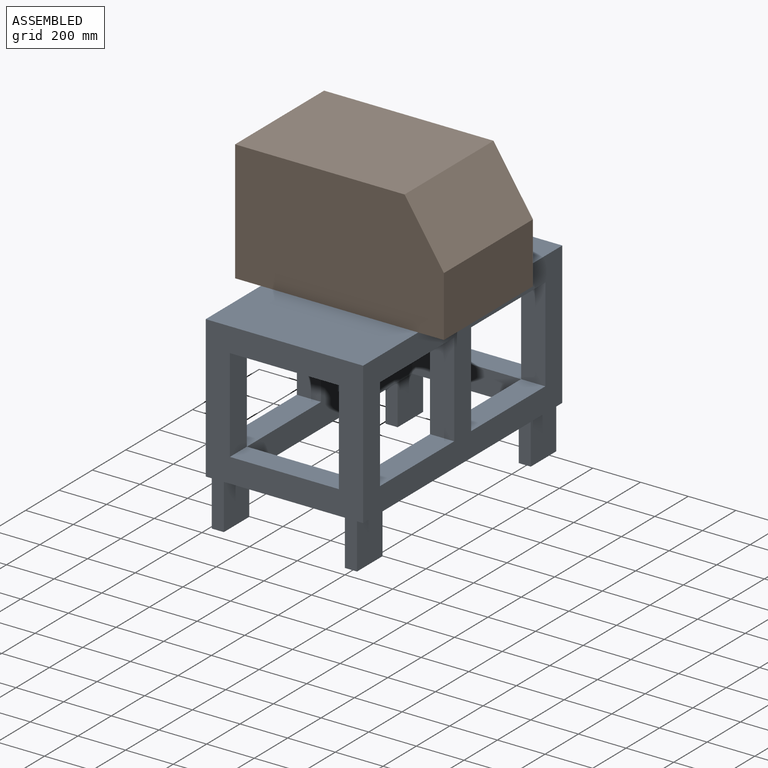
[diagram: assembled view]
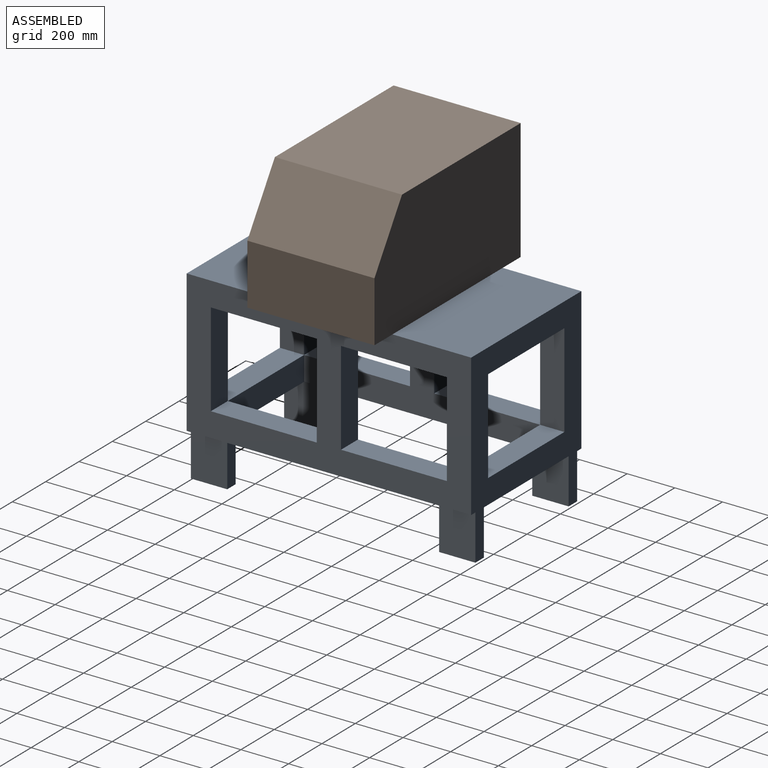
[diagram: assembled view, second angle]
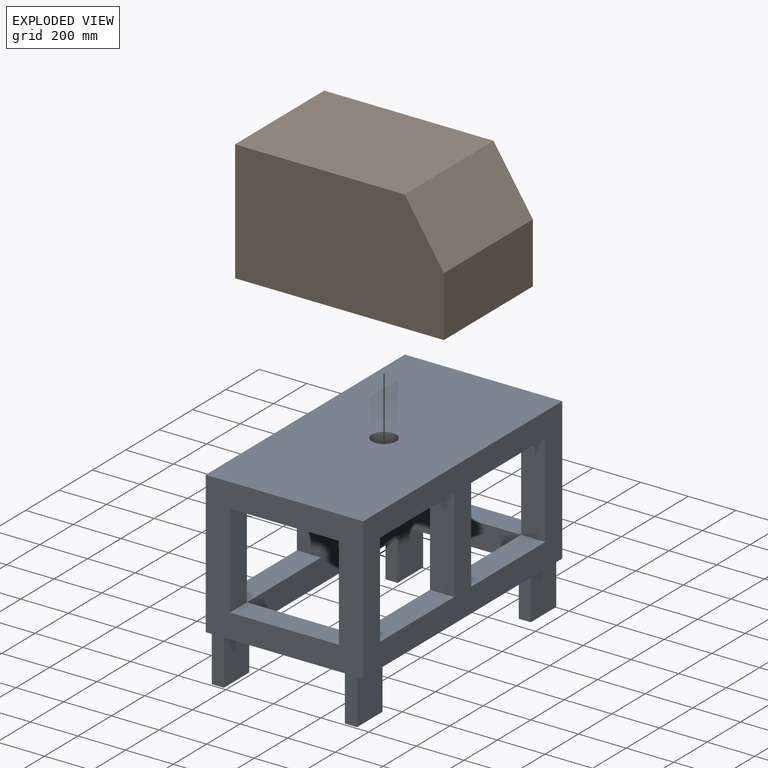
[diagram: exploded view]
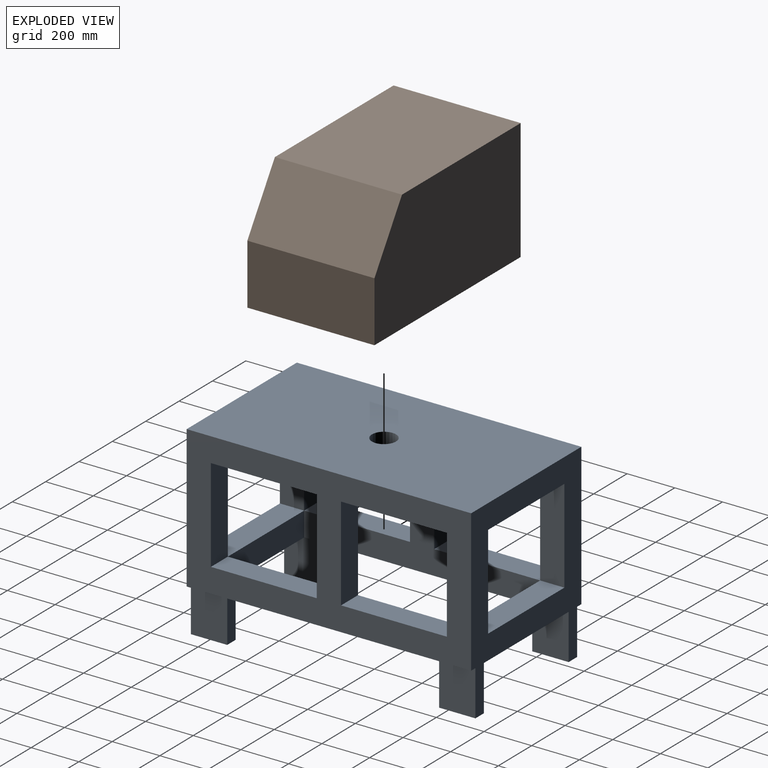
[diagram: exploded view, second angle]
ASSEMBLY  parts=2 mates=2
PART A: 46 faces, bbox 660.4x1193.8x787.4 mm
  f0: plane 152.4x50.8mm, normal (0,0,-1), area 7741.9mm2, adj f2,f6,f38,f44
  f1: plane 152.4x50.8mm, normal (0,0,-1), area 7741.9mm2, adj f3,f20,f39,f45
  f2: plane 190.5x50.8mm, normal (0,-1,0), area 9677.4mm2, adj f0,f22,f38,f44
  f3: plane 190.5x50.8mm, normal (0,1,0), area 9677.4mm2, adj f1,f22,f39,f45
  f4: plane 1193.8x596.9mm, normal (-1,0,0), area 362579.9mm2, adj f6,f14,f16,f20,f21,f22,f26,f31
  f5: plane 152.4x50.8mm, normal (0,0,-1), area 7741.9mm2, adj f6,f9,f40,f43
  f6: plane 787.4x660.4mm, normal (0,1,0), area 233547.9mm2, adj f0,f4,f5,f7,f18,f19,f21,f22
  f7: plane 1193.8x596.9mm, normal (1,0,0), area 362579.9mm2, adj f6,f15,f17,f20,f21,f22,f26,f27
  f8: plane 152.4x50.8mm, normal (0,0,-1), area 7741.9mm2, adj f10,f20,f41,f42
  f9: plane 190.5x50.8mm, normal (0,-1,0), area 9677.4mm2, adj f5,f22,f40,f43
  f10: plane 190.5x50.8mm, normal (0,1,0), area 9677.4mm2, adj f8,f22,f41,f42
  f11: plane 990.6x495.3mm, normal (-1,0,0), area 140644.9mm2, adj f15,f17,f22,f26,f27,f30,f36,f37
  f12: plane 990.6x495.3mm, normal (1,0,0), area 140644.9mm2, adj f14,f16,f22,f26,f31,f34,f36,f37
  f13: plane 457.2x101.6mm, normal (0,0,1), area 46451.5mm2, adj f20,f23,f25,f36
  f14: plane 444.5x101.6mm, normal (0,0,1), area 45161.2mm2, adj f4,f12,f33,f34
  f15: plane 444.5x101.6mm, normal (0,0,1), area 45161.2mm2, adj f7,f11,f29,f30
  f16: plane 444.5x101.6mm, normal (0,0,1), area 45161.2mm2, adj f4,f12,f31,f32
  f17: plane 444.5x101.6mm, normal (0,0,1), area 45161.2mm2, adj f7,f11,f27,f28
  f18: plane 393.7x101.6mm, normal (1,0,0), area 39999.9mm2, adj f6,f24,f26,f32
  f19: plane 393.7x101.6mm, normal (-1,0,0), area 39999.9mm2, adj f6,f24,f26,f28
  f20: plane 787.4x660.4mm, normal (0,-1,0), area 233547.9mm2, adj f1,f4,f7,f8,f13,f21,f22,f23
  f21: plane 1193.8x660.4mm, normal (0,0,1), area 780278.2mm2, adj f4,f6,f7,f20,f35
  f22: plane 1193.8x660.4mm, normal (0,0,-1), area 304515.5mm2, adj f2,f3,f4,f6,f7,f9,f10,f11
  f23: plane 393.7x101.6mm, normal (1,0,0), area 39999.9mm2, adj f13,f20,f26,f33
  f24: plane 457.2x101.6mm, normal (0,0,1), area 46451.5mm2, adj f6,f18,f19,f37
  f25: plane 393.7x101.6mm, normal (-1,0,0), area 39999.9mm2, adj f13,f20,f26,f29
  f26: plane 1193.8x660.4mm, normal (0,0,-1), area 718342.8mm2, adj f4,f6,f7,f11,f12,f18,f19,f20
  f27: plane 393.7x101.6mm, normal (0,1,0), area 39999.9mm2, adj f7,f11,f17,f26
  f28: plane 393.7x101.6mm, normal (0,-1,0), area 39999.9mm2, adj f7,f17,f19,f26
  f29: plane 393.7x101.6mm, normal (0,1,0), area 39999.9mm2, adj f7,f15,f25,f26
  f30: plane 393.7x101.6mm, normal (0,-1,0), area 39999.9mm2, adj f7,f11,f15,f26
  f31: plane 393.7x101.6mm, normal (0,1,0), area 39999.9mm2, adj f4,f12,f16,f26
  f32: plane 393.7x101.6mm, normal (0,-1,0), area 39999.9mm2, adj f4,f16,f18,f26
  f33: plane 393.7x101.6mm, normal (0,1,0), area 39999.9mm2, adj f4,f14,f23,f26
  f34: plane 393.7x101.6mm, normal (0,-1,0), area 39999.9mm2, adj f4,f12,f14,f26
  f35: cylinder r=50.8mm len=101.6mm, axis (0,0,1), area 32429.3mm2, adj f21,f26
  f36: plane 457.2x101.6mm, normal (0,1,0), area 46451.5mm2, adj f11,f12,f13,f22
  f37: plane 457.2x101.6mm, normal (0,-1,0), area 46451.5mm2, adj f11,f12,f22,f24
  f38: plane 190.5x152.4mm, normal (1,0,0), area 29032.2mm2, adj f0,f2,f6,f22
  f39: plane 190.5x152.4mm, normal (1,0,0), area 29032.2mm2, adj f1,f3,f20,f22
  f40: plane 190.5x152.4mm, normal (-1,0,0), area 29032.2mm2, adj f5,f6,f9,f22
  f41: plane 190.5x152.4mm, normal (-1,0,0), area 29032.2mm2, adj f8,f10,f20,f22
  f42: plane 190.5x152.4mm, normal (1,0,0), area 29032.2mm2, adj f8,f10,f20,f22
  f43: plane 190.5x152.4mm, normal (1,0,0), area 29032.2mm2, adj f5,f6,f9,f22
  f44: plane 190.5x152.4mm, normal (-1,0,0), area 29032.2mm2, adj f0,f2,f6,f22
  f45: plane 190.5x152.4mm, normal (-1,0,0), area 29032.2mm2, adj f1,f3,f20,f22
PART B: 9 faces, bbox 876.3x533.4x508 mm
  f0: plane 711.2x533.4mm, normal (0,0,1), area 379354.1mm2, adj f1,f4,f5,f6
  f1: plane 533.4x508mm, normal (-1,0,0), area 270967.2mm2, adj f0,f2,f5,f6
  f2: plane 876.3x533.4mm, normal (0,0,-1), area 459311.1mm2, adj f1,f3,f5,f6,f7
  f3: plane 533.4x254mm, normal (1,0,0), area 135483.6mm2, adj f2,f4,f5,f6
  f4: plane 533.4x254mm, normal (0.84,0,0.54), area 161589.4mm2, adj f0,f3,f5,f6
  f5: plane 876.3x508mm, normal (0,1,0), area 424192.7mm2, adj f0,f1,f2,f3,f4
  f6: plane 876.3x508mm, normal (0,-1,0), area 424192.7mm2, adj f0,f1,f2,f3,f4
  f7: cylinder r=50.8mm len=101.6mm, axis (0,0,-1), area 24322mm2, adj f2,f8
  f8: plane 101.6x101.6mm, normal (0,0,-1), area 8107.3mm2, adj f7
PLACE A t=(146.21,-42.95,514.86)mm fixed
PLACE B t=(38.26,287.25,1302.26)mm
MATE cylindrical A.f35 <-> B.f7  axis (0,0,1) through (476.41,553.95,1302.26)mm
MATE planar B.f7 <-> A.f35  axis (0,0,-1) through (476.41,553.95,1302.26)mm
